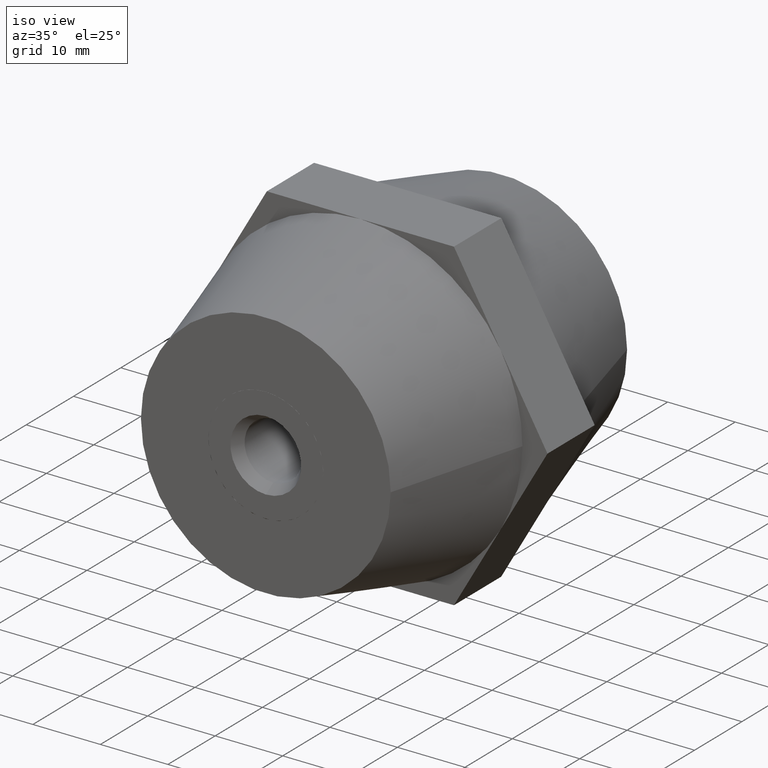
[diagram: clean part render]
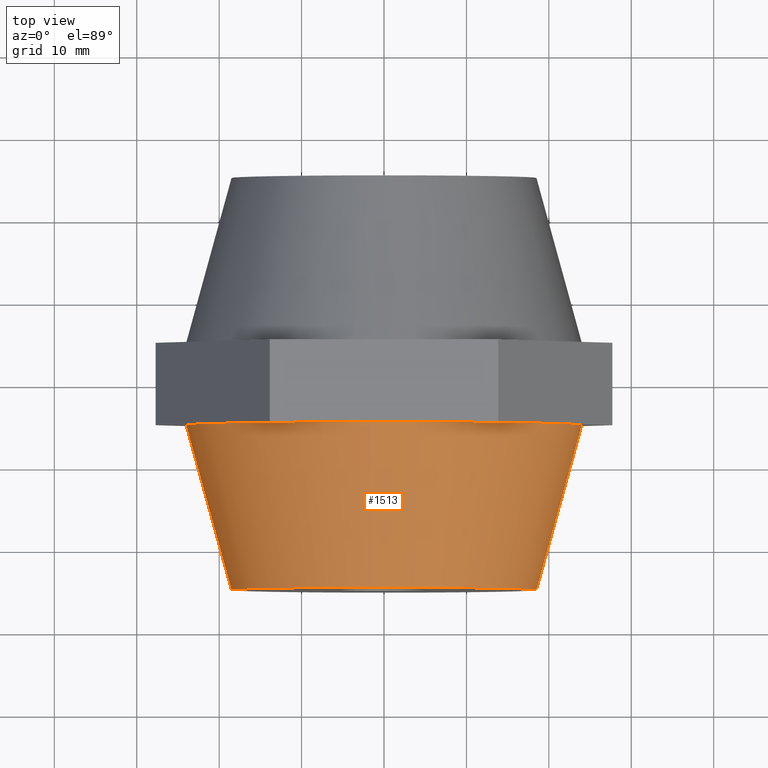
[diagram: tour spotlight — one face highlighted and labeled with its STEP entity id]
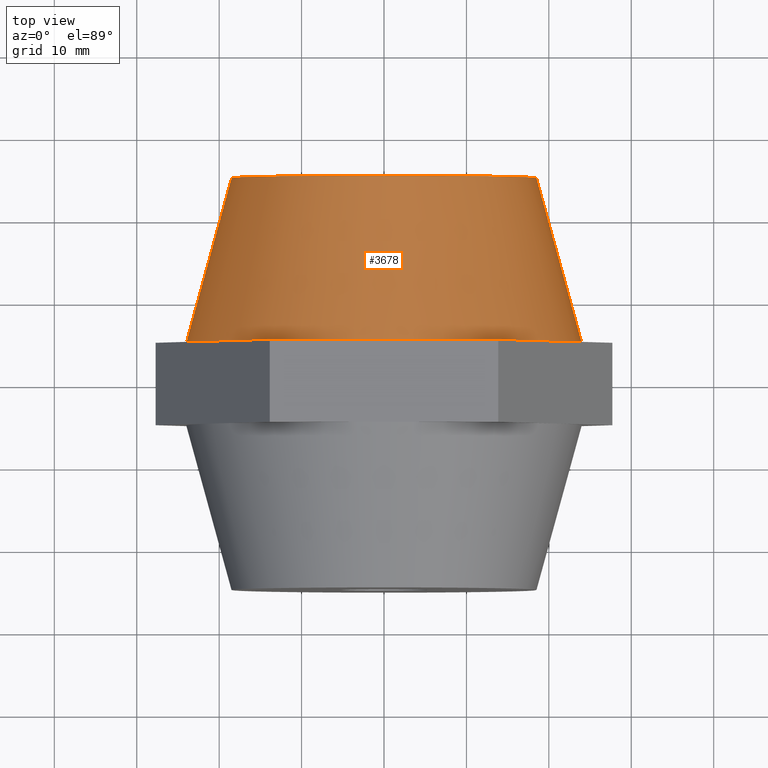
[diagram: tour spotlight — one face highlighted and labeled with its STEP entity id]
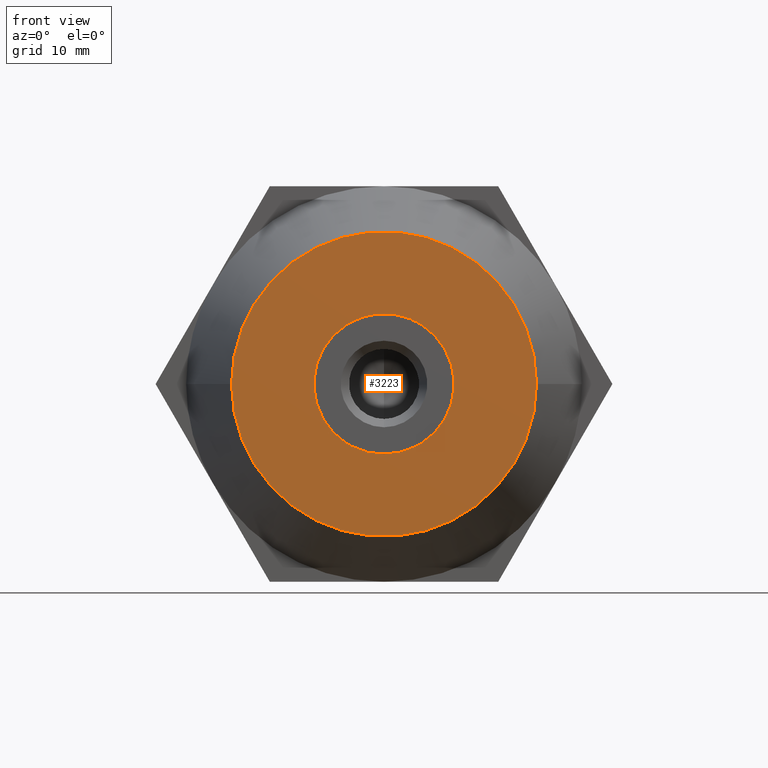
[diagram: tour spotlight — one face highlighted and labeled with its STEP entity id]
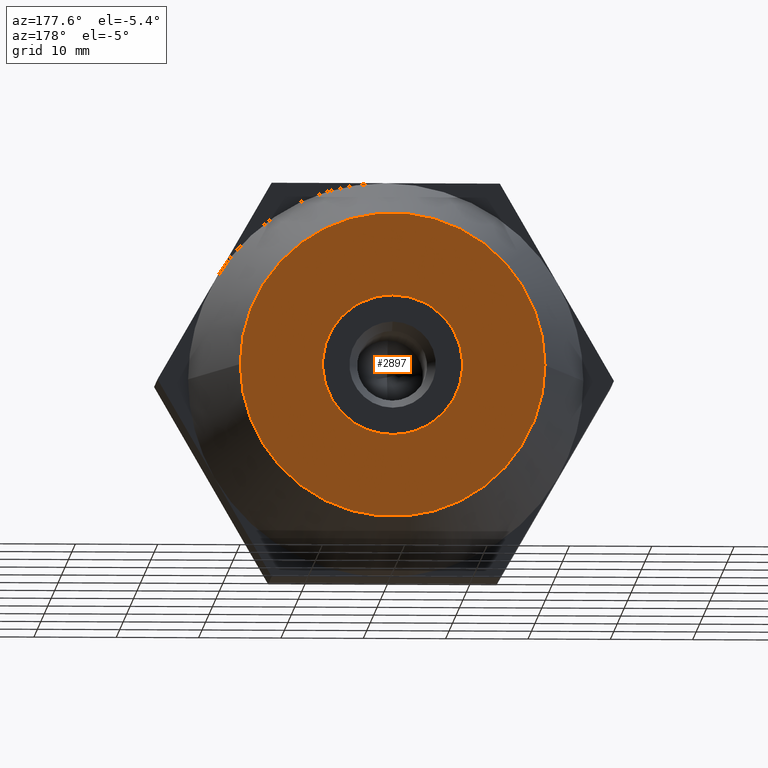
[diagram: tour spotlight — one face highlighted and labeled with its STEP entity id]
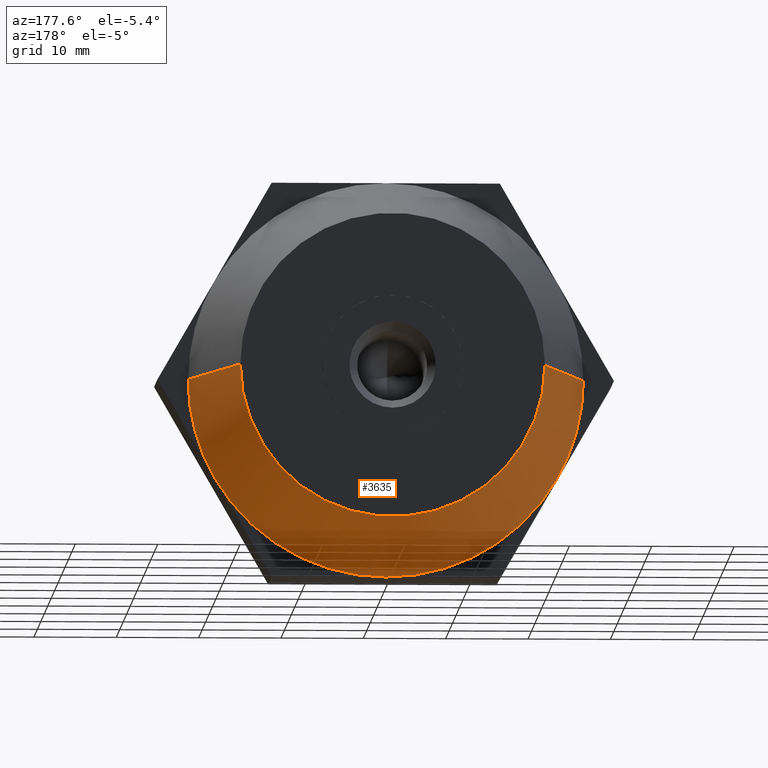
[diagram: tour spotlight — one face highlighted and labeled with its STEP entity id]
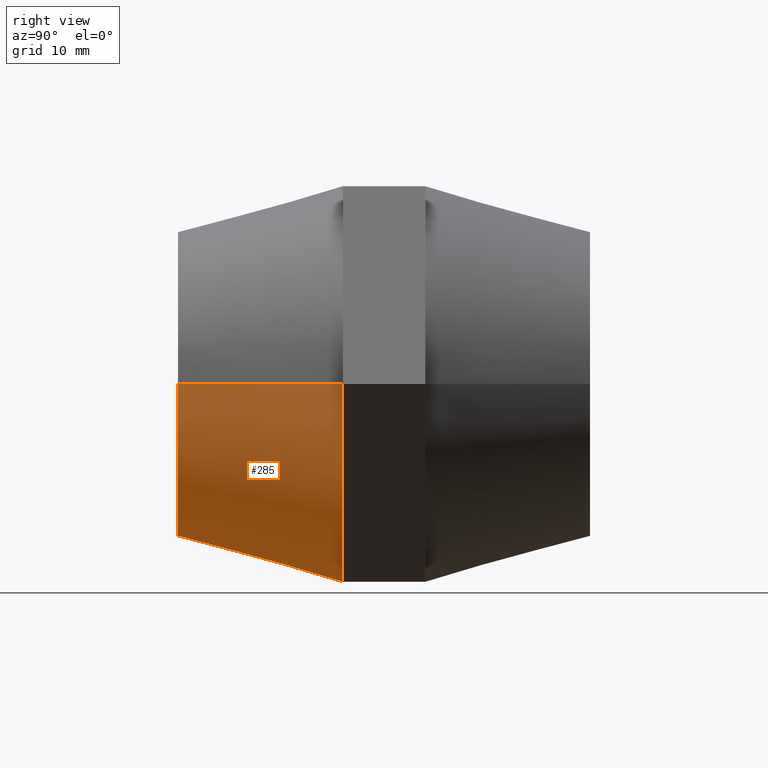
[diagram: tour spotlight — one face highlighted and labeled with its STEP entity id]
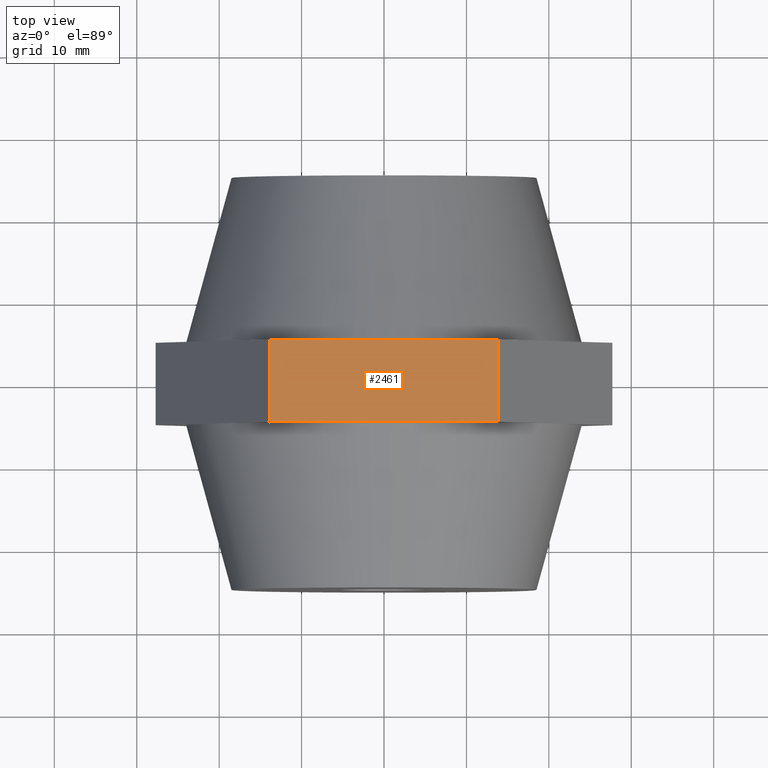
[diagram: tour spotlight — one face highlighted and labeled with its STEP entity id]
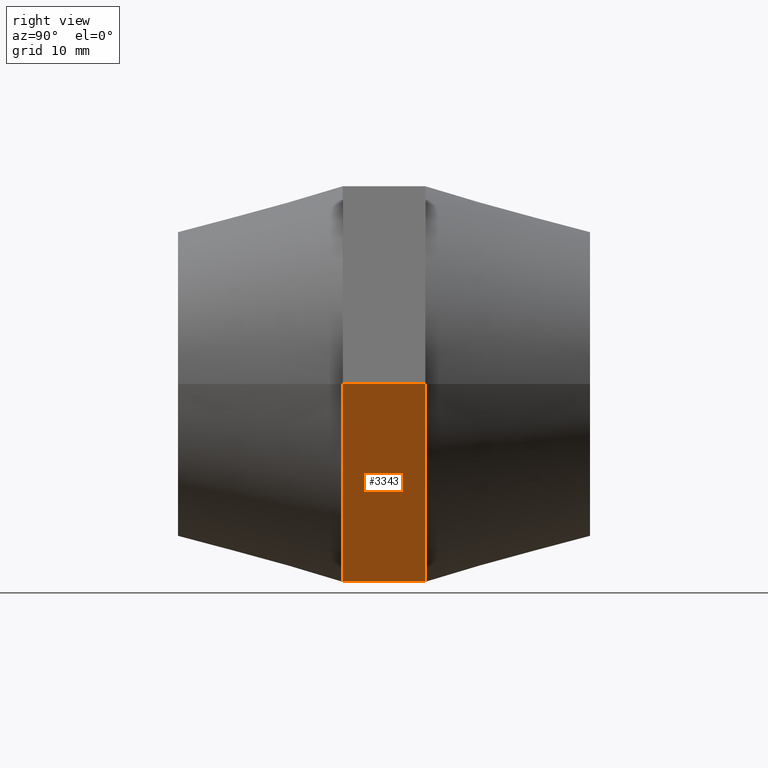
[diagram: tour spotlight — one face highlighted and labeled with its STEP entity id]
A machine part: a face-by-face anatomy tour. The part has 162 B-rep faces; the first image is the clean iso view, then the 8 largest visible faces are spotlighted one at a time (largest first), each with its STEP entity span.

Face 1 — top view, entity #1513. In plain terms, the highlighted conical surface has half-angle 15.376 deg.
Definition (entity closure, byte-faithful):
#19 = CARTESIAN_POINT ( 'NONE',  ( -23.99999999999999300, -4.999999999999997300, 0.0000000000000000000 ) ) ;
#30 = DIRECTION ( 'NONE',  ( 0.0000000000000000000, 0.0000000000000000000, 1.000000000000000000 ) ) ;
#42 = VECTOR ( 'NONE', #254, 1000.000000000000100 ) ;
#254 = DIRECTION ( 'NONE',  ( 0.2651564830210431700, 0.9642053928037901400, 3.247230382048897900E-017 ) ) ;
#325 = DIRECTION ( 'NONE',  ( -0.2651564830210429400, 0.9642053928037901400, 0.0000000000000000000 ) ) ;
#342 = CARTESIAN_POINT ( 'NONE',  ( 7.959741419701128200E-015, -5.000000000000000000, 6.060474499082429800E-016 ) ) ;
#354 = VERTEX_POINT ( 'NONE', #2178 ) ;
#404 = AXIS2_PLACEMENT_3D ( 'NONE', #3945, #1182, #2087 ) ;
#414 = ORIENTED_EDGE ( 'NONE', *, *, #529, .F. ) ;
#484 = CARTESIAN_POINT ( 'NONE',  ( 6.123233995736759800E-015, -25.00000000000000000, 0.0000000000000000000 ) ) ;
#529 = EDGE_CURVE ( 'NONE', #1502, #1735, #3660, .T. ) ;
#557 = EDGE_CURVE ( 'NONE', #354, #2193, #1492, .T. ) ;
#559 = CARTESIAN_POINT ( 'NONE',  ( 20.78460969082655300, -5.000000000000000000, 12.00000000000000000 ) ) ;
#750 = DIRECTION ( 'NONE',  ( 0.0000000000000000000, 0.0000000000000000000, 1.000000000000000000 ) ) ;
#909 = VERTEX_POINT ( 'NONE', #3963 ) ;
#1017 = CIRCLE ( 'NONE', #1802, 24.00000000000000000 ) ;
#1041 = ORIENTED_EDGE ( 'NONE', *, *, #1568, .F. ) ;
#1042 = VERTEX_POINT ( 'NONE', #1553 ) ;
#1085 = CARTESIAN_POINT ( 'NONE',  ( 7.959741419701128200E-015, -5.000000000000000000, 6.060474499082429800E-016 ) ) ;
#1099 = DIRECTION ( 'NONE',  ( 0.0000000000000000000, 0.0000000000000000000, 1.000000000000000000 ) ) ;
#1182 = DIRECTION ( 'NONE',  ( 9.182537119821829500E-017, 1.000000000000000000, 0.0000000000000000000 ) ) ;
#1241 = AXIS2_PLACEMENT_3D ( 'NONE', #484, #3868, #2012 ) ;
#1384 = LINE ( 'NONE', #19, #3553 ) ;
#1445 = DIRECTION ( 'NONE',  ( 9.182537119821829500E-017, 1.000000000000000000, 0.0000000000000000000 ) ) ;
#1481 = EDGE_LOOP ( 'NONE', ( #1824, #2584, #414, #2968, #2313, #1673, #1041 ) ) ;
#1484 = DIRECTION ( 'NONE',  ( -1.000000000000000000, 1.084202172485504400E-016, 0.0000000000000000000 ) ) ;
#1492 = CIRCLE ( 'NONE', #1241, 18.50000000000000000 ) ;
#1502 = VERTEX_POINT ( 'NONE', #559 ) ;
#1513 = ADVANCED_FACE ( 'NONE', ( #2104 ), #2435, .T. ) ;
#1553 = CARTESIAN_POINT ( 'NONE',  ( -23.99999999999999300, -5.000000000000000000, 0.0000000000000000000 ) ) ;
#1568 = EDGE_CURVE ( 'NONE', #354, #1042, #1384, .T. ) ;
#1638 = CIRCLE ( 'NONE', #2372, 24.00000000000000000 ) ;
#1673 = ORIENTED_EDGE ( 'NONE', *, *, #3606, .F. ) ;
#1690 = DIRECTION ( 'NONE',  ( 0.0000000000000000000, 1.000000000000000000, 0.0000000000000000000 ) ) ;
#1722 = CARTESIAN_POINT ( 'NONE',  ( 18.50000000000000700, -25.00000000000000000, 2.602374448188125400E-015 ) ) ;
#1735 = VERTEX_POINT ( 'NONE', #3734 ) ;
#1748 = CARTESIAN_POINT ( 'NONE',  ( 24.00000000000000700, -5.000000000000002700, 2.939152317953647900E-015 ) ) ;
#1802 = AXIS2_PLACEMENT_3D ( 'NONE', #3594, #1445, #1484 ) ;
#1824 = ORIENTED_EDGE ( 'NONE', *, *, #557, .T. ) ;
#1878 = EDGE_CURVE ( 'NONE', #2828, #1502, #2073, .T. ) ;
#1951 = CARTESIAN_POINT ( 'NONE',  ( 7.959741419701128200E-015, -5.000000000000000000, 6.060474499082429800E-016 ) ) ;
#2004 = DIRECTION ( 'NONE',  ( 0.0000000000000000000, 1.000000000000000000, 0.0000000000000000000 ) ) ;
#2012 = DIRECTION ( 'NONE',  ( -1.000000000000000000, 0.0000000000000000000, 0.0000000000000000000 ) ) ;
#2073 = CIRCLE ( 'NONE', #3472, 24.00000000000000000 ) ;
#2087 = DIRECTION ( 'NONE',  ( -1.000000000000000000, 1.084202172485504400E-016, 0.0000000000000000000 ) ) ;
#2104 = FACE_OUTER_BOUND ( 'NONE', #1481, .T. ) ;
#2174 = LINE ( 'NONE', #1748, #42 ) ;
#2178 = CARTESIAN_POINT ( 'NONE',  ( -18.49999999999999300, -25.00000000000000000, 0.0000000000000000000 ) ) ;
#2193 = VERTEX_POINT ( 'NONE', #1722 ) ;
#2313 = ORIENTED_EDGE ( 'NONE', *, *, #2614, .F. ) ;
#2372 = AXIS2_PLACEMENT_3D ( 'NONE', #342, #2471, #30 ) ;
#2435 = CONICAL_SURFACE ( 'NONE', #404, 24.00000000000000000, 0.2683662109059075700 ) ;
#2471 = DIRECTION ( 'NONE',  ( 0.0000000000000000000, 1.000000000000000000, 0.0000000000000000000 ) ) ;
#2475 = AXIS2_PLACEMENT_3D ( 'NONE', #1951, #1690, #750 ) ;
#2584 = ORIENTED_EDGE ( 'NONE', *, *, #3398, .T. ) ;
#2614 = EDGE_CURVE ( 'NONE', #909, #2828, #1017, .T. ) ;
#2828 = VERTEX_POINT ( 'NONE', #3567 ) ;
#2968 = ORIENTED_EDGE ( 'NONE', *, *, #1878, .F. ) ;
#3398 = EDGE_CURVE ( 'NONE', #2193, #1735, #2174, .T. ) ;
#3472 = AXIS2_PLACEMENT_3D ( 'NONE', #1085, #2004, #1099 ) ;
#3553 = VECTOR ( 'NONE', #325, 1000.000000000000100 ) ;
#3567 = CARTESIAN_POINT ( 'NONE',  ( 7.959741419701128200E-015, -5.000000000000000000, 24.00000000000000000 ) ) ;
#3594 = CARTESIAN_POINT ( 'NONE',  ( 7.959741419701128200E-015, -5.000000000000000000, 0.0000000000000000000 ) ) ;
#3606 = EDGE_CURVE ( 'NONE', #1042, #909, #1638, .T. ) ;
#3660 = CIRCLE ( 'NONE', #2475, 24.00000000000000000 ) ;
#3734 = CARTESIAN_POINT ( 'NONE',  ( 24.00000000000000700, -5.000000000000000000, 2.939152317953647900E-015 ) ) ;
#3868 = DIRECTION ( 'NONE',  ( 9.182537119821829500E-017, 1.000000000000000000, 0.0000000000000000000 ) ) ;
#3945 = CARTESIAN_POINT ( 'NONE',  ( 7.959741419701128200E-015, -5.000000000000000000, 0.0000000000000000000 ) ) ;
#3963 = CARTESIAN_POINT ( 'NONE',  ( -20.78460969082655300, -5.000000000000000000, 12.00000000000000000 ) ) ;

Face 2 — top view, entity #3678. In plain terms, the highlighted conical surface has half-angle 15.376 deg.
Definition (entity closure, byte-faithful):
#124 = CIRCLE ( 'NONE', #204, 18.50000000000000000 ) ;
#204 = AXIS2_PLACEMENT_3D ( 'NONE', #2307, #806, #2951 ) ;
#209 = VERTEX_POINT ( 'NONE', #3337 ) ;
#417 = CONICAL_SURFACE ( 'NONE', #1790, 18.50000000000000000, 0.2683662109059070700 ) ;
#433 = EDGE_LOOP ( 'NONE', ( #952, #2436, #2539, #3303, #1342, #2309, #524 ) ) ;
#439 = VERTEX_POINT ( 'NONE', #3419 ) ;
#443 = EDGE_CURVE ( 'NONE', #439, #2823, #1965, .T. ) ;
#524 = ORIENTED_EDGE ( 'NONE', *, *, #443, .F. ) ;
#636 = VERTEX_POINT ( 'NONE', #2017 ) ;
#683 = VECTOR ( 'NONE', #3439, 1000.000000000000000 ) ;
#703 = DIRECTION ( 'NONE',  ( -1.000000000000000000, 1.084202172485504400E-016, 0.0000000000000000000 ) ) ;
#717 = CARTESIAN_POINT ( 'NONE',  ( 8.877995131683309600E-015, 5.000000000000000000, 0.0000000000000000000 ) ) ;
#806 = DIRECTION ( 'NONE',  ( 9.182537119821829500E-017, 1.000000000000000000, 0.0000000000000000000 ) ) ;
#811 = CARTESIAN_POINT ( 'NONE',  ( -23.99999999999999600, 5.000000000000000000, 2.939152317953648300E-015 ) ) ;
#952 = ORIENTED_EDGE ( 'NONE', *, *, #1359, .F. ) ;
#1059 = CIRCLE ( 'NONE', #2182, 24.00000000000000000 ) ;
#1307 = DIRECTION ( 'NONE',  ( 1.000000000000000000, 0.0000000000000000000, 0.0000000000000000000 ) ) ;
#1342 = ORIENTED_EDGE ( 'NONE', *, *, #1869, .T. ) ;
#1359 = EDGE_CURVE ( 'NONE', #3127, #439, #124, .T. ) ;
#1366 = CARTESIAN_POINT ( 'NONE',  ( 8.877995131683309600E-015, 5.000000000000000000, 0.0000000000000000000 ) ) ;
#1408 = DIRECTION ( 'NONE',  ( 9.182537119821829500E-017, 1.000000000000000000, 0.0000000000000000000 ) ) ;
#1422 = CARTESIAN_POINT ( 'NONE',  ( 8.877995131683309600E-015, 5.000000000000000000, 0.0000000000000000000 ) ) ;
#1569 = CARTESIAN_POINT ( 'NONE',  ( 1.071450255564768000E-014, 25.00000000000000000, 0.0000000000000000000 ) ) ;
#1784 = VERTEX_POINT ( 'NONE', #2230 ) ;
#1790 = AXIS2_PLACEMENT_3D ( 'NONE', #1569, #2197, #1307 ) ;
#1842 = EDGE_CURVE ( 'NONE', #209, #2823, #3214, .T. ) ;
#1869 = EDGE_CURVE ( 'NONE', #636, #209, #1059, .T. ) ;
#1941 = DIRECTION ( 'NONE',  ( 9.182537119821829500E-017, 1.000000000000000000, 0.0000000000000000000 ) ) ;
#1965 = LINE ( 'NONE', #3097, #2786 ) ;
#2017 = CARTESIAN_POINT ( 'NONE',  ( 1.071450255564768000E-014, 5.000000000000000000, 24.00000000000000000 ) ) ;
#2042 = AXIS2_PLACEMENT_3D ( 'NONE', #717, #1941, #703 ) ;
#2182 = AXIS2_PLACEMENT_3D ( 'NONE', #1366, #3529, #2611 ) ;
#2197 = DIRECTION ( 'NONE',  ( -9.182537119821829500E-017, -1.000000000000000000, 0.0000000000000000000 ) ) ;
#2230 = CARTESIAN_POINT ( 'NONE',  ( -20.78460969082650000, 5.000000000000000000, 12.00000000000000000 ) ) ;
#2307 = CARTESIAN_POINT ( 'NONE',  ( 1.071450255564768000E-014, 25.00000000000000000, 0.0000000000000000000 ) ) ;
#2309 = ORIENTED_EDGE ( 'NONE', *, *, #1842, .T. ) ;
#2310 = LINE ( 'NONE', #2815, #683 ) ;
#2417 = EDGE_CURVE ( 'NONE', #3127, #3842, #2310, .T. ) ;
#2434 = AXIS2_PLACEMENT_3D ( 'NONE', #2624, #3839, #2600 ) ;
#2436 = ORIENTED_EDGE ( 'NONE', *, *, #2417, .T. ) ;
#2539 = ORIENTED_EDGE ( 'NONE', *, *, #3189, .T. ) ;
#2600 = DIRECTION ( 'NONE',  ( -1.000000000000000000, 1.084202172485504400E-016, 0.0000000000000000000 ) ) ;
#2611 = DIRECTION ( 'NONE',  ( -1.000000000000000000, 1.084202172485504400E-016, 0.0000000000000000000 ) ) ;
#2624 = CARTESIAN_POINT ( 'NONE',  ( 8.877995131683309600E-015, 5.000000000000000000, 0.0000000000000000000 ) ) ;
#2637 = AXIS2_PLACEMENT_3D ( 'NONE', #1422, #1408, #3291 ) ;
#2786 = VECTOR ( 'NONE', #2908, 1000.000000000000100 ) ;
#2815 = CARTESIAN_POINT ( 'NONE',  ( -18.49999999999998900, 25.00000000000000000, 2.265596578422603400E-015 ) ) ;
#2823 = VERTEX_POINT ( 'NONE', #2947 ) ;
#2908 = DIRECTION ( 'NONE',  ( 0.2651564830210425000, -0.9642053928037903600, 0.0000000000000000000 ) ) ;
#2947 = CARTESIAN_POINT ( 'NONE',  ( 24.00000000000001100, 5.000000000000000000, 0.0000000000000000000 ) ) ;
#2951 = DIRECTION ( 'NONE',  ( -1.000000000000000000, 0.0000000000000000000, 0.0000000000000000000 ) ) ;
#3095 = CARTESIAN_POINT ( 'NONE',  ( -18.49999999999998900, 25.00000000000000000, 2.602374448188125800E-015 ) ) ;
#3097 = CARTESIAN_POINT ( 'NONE',  ( 18.50000000000001100, 25.00000000000000000, 0.0000000000000000000 ) ) ;
#3127 = VERTEX_POINT ( 'NONE', #3095 ) ;
#3181 = CIRCLE ( 'NONE', #2042, 24.00000000000000000 ) ;
#3189 = EDGE_CURVE ( 'NONE', #3842, #1784, #3181, .T. ) ;
#3214 = CIRCLE ( 'NONE', #2434, 24.00000000000000000 ) ;
#3291 = DIRECTION ( 'NONE',  ( -1.000000000000000000, 1.084202172485504400E-016, 0.0000000000000000000 ) ) ;
#3303 = ORIENTED_EDGE ( 'NONE', *, *, #3810, .T. ) ;
#3337 = CARTESIAN_POINT ( 'NONE',  ( 20.78460969082650000, 5.000000000000000000, 12.00000000000000000 ) ) ;
#3381 = CIRCLE ( 'NONE', #2637, 24.00000000000000000 ) ;
#3419 = CARTESIAN_POINT ( 'NONE',  ( 18.50000000000001100, 25.00000000000000000, 0.0000000000000000000 ) ) ;
#3439 = DIRECTION ( 'NONE',  ( -0.2651564830210426700, -0.9642053928037902500, 3.247230382048892400E-017 ) ) ;
#3529 = DIRECTION ( 'NONE',  ( 9.182537119821829500E-017, 1.000000000000000000, 0.0000000000000000000 ) ) ;
#3628 = FACE_OUTER_BOUND ( 'NONE', #433, .T. ) ;
#3678 = ADVANCED_FACE ( 'NONE', ( #3628 ), #417, .T. ) ;
#3810 = EDGE_CURVE ( 'NONE', #1784, #636, #3381, .T. ) ;
#3839 = DIRECTION ( 'NONE',  ( 9.182537119821829500E-017, 1.000000000000000000, 0.0000000000000000000 ) ) ;
#3842 = VERTEX_POINT ( 'NONE', #811 ) ;

Face 3 — front view, entity #3223. In plain terms, the highlighted planar face has unit normal (-0, -1, 0).
Definition (entity closure, byte-faithful):
#20 = DIRECTION ( 'NONE',  ( -0.8660254037844387100, 7.952310416959298700E-017, 0.4999999999999998900 ) ) ;
#28 = DIRECTION ( 'NONE',  ( 1.000000000000000000, 0.0000000000000000000, -1.776356839400250500E-015 ) ) ;
#36 = ORIENTED_EDGE ( 'NONE', *, *, #557, .F. ) ;
#104 = EDGE_CURVE ( 'NONE', #976, #1535, #1880, .T. ) ;
#183 = DIRECTION ( 'NONE',  ( 9.182537119821829500E-017, 1.000000000000000000, 0.0000000000000000000 ) ) ;
#225 = LINE ( 'NONE', #3591, #2022 ) ;
#227 = VECTOR ( 'NONE', #1910, 1000.000000000000000 ) ;
#232 = EDGE_CURVE ( 'NONE', #1414, #1280, #225, .T. ) ;
#290 = AXIS2_PLACEMENT_3D ( 'NONE', #2327, #183, #2650 ) ;
#307 = CARTESIAN_POINT ( 'NONE',  ( -4.607176426993850000, -25.00000000000000000, 7.155000025894639600 ) ) ;
#318 = ORIENTED_EDGE ( 'NONE', *, *, #1335, .T. ) ;
#326 = CARTESIAN_POINT ( 'NONE',  ( -18.12500000000000000, -25.00000000000000000, 0.6495190528383230100 ) ) ;
#330 = DIRECTION ( 'NONE',  ( 1.000000000000000000, 0.0000000000000000000, 0.0000000000000000000 ) ) ;
#354 = VERTEX_POINT ( 'NONE', #2178 ) ;
#387 = ORIENTED_EDGE ( 'NONE', *, *, #2290, .T. ) ;
#484 = CARTESIAN_POINT ( 'NONE',  ( 6.123233995736759800E-015, -25.00000000000000000, 0.0000000000000000000 ) ) ;
#511 = CARTESIAN_POINT ( 'NONE',  ( 4.128506240030730200E-016, -25.00000000000000000, 0.0000000000000000000 ) ) ;
#539 = CIRCLE ( 'NONE', #3456, 8.509999999999999800 ) ;
#540 = ORIENTED_EDGE ( 'NONE', *, *, #2820, .T. ) ;
#557 = EDGE_CURVE ( 'NONE', #354, #2193, #1492, .T. ) ;
#590 = CARTESIAN_POINT ( 'NONE',  ( 4.128506240030730200E-016, -25.00000000000000000, 0.0000000000000000000 ) ) ;
#597 = CIRCLE ( 'NONE', #290, 18.50000000000000000 ) ;
#617 = VERTEX_POINT ( 'NONE', #1707 ) ;
#643 = CIRCLE ( 'NONE', #3886, 8.509999999999999800 ) ;
#697 = AXIS2_PLACEMENT_3D ( 'NONE', #1529, #3686, #330 ) ;
#734 = EDGE_CURVE ( 'NONE', #3306, #976, #539, .T. ) ;
#769 = DIRECTION ( 'NONE',  ( 9.182537119821829500E-017, 1.000000000000000000, -0.0000000000000000000 ) ) ;
#795 = CARTESIAN_POINT ( 'NONE',  ( -8.500000000000000000, -25.00000000000000000, 0.4124318125460260100 ) ) ;
#847 = DIRECTION ( 'NONE',  ( 1.000000000000000000, 0.0000000000000000000, 0.0000000000000000000 ) ) ;
#924 = LINE ( 'NONE', #1538, #2314 ) ;
#976 = VERTEX_POINT ( 'NONE', #1536 ) ;
#980 = CARTESIAN_POINT ( 'NONE',  ( 3.892823573006280100, -25.00000000000000000, -7.567431838440740000 ) ) ;
#1019 = DIRECTION ( 'NONE',  ( -9.182537119821829500E-017, -1.000000000000000000, 0.0000000000000000000 ) ) ;
#1028 = CARTESIAN_POINT ( 'NONE',  ( -18.12500000000000000, -25.00000000000000000, -0.6495190528383320000 ) ) ;
#1032 = PLANE ( 'NONE',  #3355 ) ;
#1037 = DIRECTION ( 'NONE',  ( 1.000000000000000000, 0.0000000000000000000, -1.776356839400250500E-015 ) ) ;
#1050 = VERTEX_POINT ( 'NONE', #1055 ) ;
#1055 = CARTESIAN_POINT ( 'NONE',  ( -1.925929944387235900E-031, -25.00000000000000000, 8.509999999999999800 ) ) ;
#1116 = ORIENTED_EDGE ( 'NONE', *, *, #2152, .T. ) ;
#1134 = DIRECTION ( 'NONE',  ( 9.182537119821829500E-017, 1.000000000000000000, -0.0000000000000000000 ) ) ;
#1160 = CARTESIAN_POINT ( 'NONE',  ( 8.500000000000000000, -25.00000000000000000, 9.544116274330180600E-015 ) ) ;
#1195 = ORIENTED_EDGE ( 'NONE', *, *, #734, .T. ) ;
#1232 = ORIENTED_EDGE ( 'NONE', *, *, #3745, .T. ) ;
#1241 = AXIS2_PLACEMENT_3D ( 'NONE', #484, #3868, #2012 ) ;
#1258 = CIRCLE ( 'NONE', #3178, 8.509999999999999800 ) ;
#1280 = VERTEX_POINT ( 'NONE', #795 ) ;
#1335 = EDGE_CURVE ( 'NONE', #3449, #3265, #3901, .T. ) ;
#1410 = DIRECTION ( 'NONE',  ( 1.000000000000000000, 0.0000000000000000000, 0.0000000000000000000 ) ) ;
#1414 = VERTEX_POINT ( 'NONE', #2008 ) ;
#1438 = VECTOR ( 'NONE', #2626, 1000.000000000000000 ) ;
#1492 = CIRCLE ( 'NONE', #1241, 18.50000000000000000 ) ;
#1515 = DIRECTION ( 'NONE',  ( 9.182537119821829500E-017, 1.000000000000000000, -0.0000000000000000000 ) ) ;
#1529 = CARTESIAN_POINT ( 'NONE',  ( 4.128506240030730200E-016, -25.00000000000000000, 0.0000000000000000000 ) ) ;
#1535 = VERTEX_POINT ( 'NONE', #2722 ) ;
#1536 = CARTESIAN_POINT ( 'NONE',  ( 8.500000000000000000, -25.00000000000000000, 0.4124318125460619800 ) ) ;
#1538 = CARTESIAN_POINT ( 'NONE',  ( -9.625000000000000000, -25.00000000000000000, 15.37195091717380000 ) ) ;
#1596 = EDGE_CURVE ( 'NONE', #1535, #3449, #2827, .T. ) ;
#1597 = FACE_OUTER_BOUND ( 'NONE', #1783, .T. ) ;
#1707 = CARTESIAN_POINT ( 'NONE',  ( -4.607176426993720300, -25.00000000000000000, -7.155000025894719500 ) ) ;
#1722 = CARTESIAN_POINT ( 'NONE',  ( 18.50000000000000700, -25.00000000000000000, 2.602374448188125400E-015 ) ) ;
#1744 = CARTESIAN_POINT ( 'NONE',  ( -9.625000000000000000, -25.00000000000000000, -15.37195091717380000 ) ) ;
#1783 = EDGE_LOOP ( 'NONE', ( #36, #3743 ) ) ;
#1822 = CARTESIAN_POINT ( 'NONE',  ( 4.128506240030730200E-016, -25.00000000000000000, 0.0000000000000000000 ) ) ;
#1880 = LINE ( 'NONE', #1160, #2835 ) ;
#1910 = DIRECTION ( 'NONE',  ( 0.8660254037844387100, -7.952310416959298700E-017, 0.4999999999999998900 ) ) ;
#1992 = EDGE_CURVE ( 'NONE', #3597, #3420, #3718, .T. ) ;
#2008 = CARTESIAN_POINT ( 'NONE',  ( -8.500000000000000000, -25.00000000000000000, -0.4124318125460260100 ) ) ;
#2012 = DIRECTION ( 'NONE',  ( -1.000000000000000000, 0.0000000000000000000, 0.0000000000000000000 ) ) ;
#2022 = VECTOR ( 'NONE', #3649, 1000.000000000000000 ) ;
#2049 = DIRECTION ( 'NONE',  ( 3.534857879381550100E-016, -3.245896369071579600E-032, -1.000000000000000000 ) ) ;
#2052 = ORIENTED_EDGE ( 'NONE', *, *, #104, .T. ) ;
#2055 = CARTESIAN_POINT ( 'NONE',  ( 4.128506240030730200E-016, -25.00000000000000000, 0.0000000000000000000 ) ) ;
#2069 = ORIENTED_EDGE ( 'NONE', *, *, #1992, .T. ) ;
#2083 = CARTESIAN_POINT ( 'NONE',  ( -3.892823573006150000, -25.00000000000000000, 7.567431838440809200 ) ) ;
#2115 = AXIS2_PLACEMENT_3D ( 'NONE', #2055, #1134, #1410 ) ;
#2152 = EDGE_CURVE ( 'NONE', #2977, #617, #3173, .T. ) ;
#2178 = CARTESIAN_POINT ( 'NONE',  ( -18.49999999999999300, -25.00000000000000000, 0.0000000000000000000 ) ) ;
#2193 = VERTEX_POINT ( 'NONE', #1722 ) ;
#2259 = CARTESIAN_POINT ( 'NONE',  ( -18.50000000000000000, -25.00000000000000000, 0.0000000000000000000 ) ) ;
#2290 = EDGE_CURVE ( 'NONE', #3202, #3306, #924, .T. ) ;
#2302 = ORIENTED_EDGE ( 'NONE', *, *, #1596, .T. ) ;
#2314 = VECTOR ( 'NONE', #3727, 1000.000000000000000 ) ;
#2327 = CARTESIAN_POINT ( 'NONE',  ( 6.123233995736759800E-015, -25.00000000000000000, 0.0000000000000000000 ) ) ;
#2365 = DIRECTION ( 'NONE',  ( 9.182537119821829500E-017, 1.000000000000000000, -0.0000000000000000000 ) ) ;
#2389 = EDGE_CURVE ( 'NONE', #3420, #1050, #2838, .T. ) ;
#2402 = DIRECTION ( 'NONE',  ( 9.182537119821829500E-017, 1.000000000000000000, -0.0000000000000000000 ) ) ;
#2429 = EDGE_LOOP ( 'NONE', ( #387, #1195, #2052, #2302, #318, #2872, #1116, #540, #3277, #3742, #2069, #3939, #1232 ) ) ;
#2626 = DIRECTION ( 'NONE',  ( -0.8660254037844387100, 7.952310416959298700E-017, -0.4999999999999998900 ) ) ;
#2650 = DIRECTION ( 'NONE',  ( -1.000000000000000000, 0.0000000000000000000, 0.0000000000000000000 ) ) ;
#2722 = CARTESIAN_POINT ( 'NONE',  ( 8.500000000000000000, -25.00000000000000000, -0.4124318125460800200 ) ) ;
#2751 = DIRECTION ( 'NONE',  ( 1.000000000000000000, 0.0000000000000000000, 0.0000000000000000000 ) ) ;
#2820 = EDGE_CURVE ( 'NONE', #617, #1414, #3369, .T. ) ;
#2827 = CIRCLE ( 'NONE', #2933, 8.509999999999999800 ) ;
#2835 = VECTOR ( 'NONE', #2049, 1000.000000000000000 ) ;
#2836 = CARTESIAN_POINT ( 'NONE',  ( 3.892823573006245000, -25.00000000000000000, 7.567431838440759500 ) ) ;
#2838 = CIRCLE ( 'NONE', #697, 8.509999999999999800 ) ;
#2872 = ORIENTED_EDGE ( 'NONE', *, *, #3820, .T. ) ;
#2880 = CIRCLE ( 'NONE', #3642, 8.509999999999999800 ) ;
#2885 = VECTOR ( 'NONE', #20, 1000.000000000000000 ) ;
#2933 = AXIS2_PLACEMENT_3D ( 'NONE', #1822, #1515, #2751 ) ;
#2959 = DIRECTION ( 'NONE',  ( 1.000000000000000000, 0.0000000000000000000, 0.0000000000000000000 ) ) ;
#2977 = VERTEX_POINT ( 'NONE', #3336 ) ;
#2978 = EDGE_CURVE ( 'NONE', #1280, #3597, #2880, .T. ) ;
#3135 = DIRECTION ( 'NONE',  ( 1.000000000000000000, -9.182537119821829500E-017, 0.0000000000000000000 ) ) ;
#3173 = LINE ( 'NONE', #326, #2885 ) ;
#3178 = AXIS2_PLACEMENT_3D ( 'NONE', #3475, #769, #1037 ) ;
#3202 = VERTEX_POINT ( 'NONE', #2836 ) ;
#3223 = ADVANCED_FACE ( 'NONE', ( #1597, #3521 ), #1032, .T. ) ;
#3265 = VERTEX_POINT ( 'NONE', #980 ) ;
#3277 = ORIENTED_EDGE ( 'NONE', *, *, #232, .T. ) ;
#3306 = VERTEX_POINT ( 'NONE', #3894 ) ;
#3312 = EDGE_CURVE ( 'NONE', #2193, #354, #597, .T. ) ;
#3336 = CARTESIAN_POINT ( 'NONE',  ( -3.892823573006280100, -25.00000000000000000, -7.567431838440740000 ) ) ;
#3355 = AXIS2_PLACEMENT_3D ( 'NONE', #2259, #1019, #3135 ) ;
#3369 = CIRCLE ( 'NONE', #2115, 8.509999999999999800 ) ;
#3420 = VERTEX_POINT ( 'NONE', #2083 ) ;
#3449 = VERTEX_POINT ( 'NONE', #3639 ) ;
#3456 = AXIS2_PLACEMENT_3D ( 'NONE', #3887, #2365, #2959 ) ;
#3475 = CARTESIAN_POINT ( 'NONE',  ( 4.128506240030730200E-016, -25.00000000000000000, 0.0000000000000000000 ) ) ;
#3521 = FACE_BOUND ( 'NONE', #2429, .T. ) ;
#3576 = DIRECTION ( 'NONE',  ( 9.182537119821829500E-017, 1.000000000000000000, -0.0000000000000000000 ) ) ;
#3591 = CARTESIAN_POINT ( 'NONE',  ( -8.500000000000000000, -25.00000000000000000, 0.0000000000000000000 ) ) ;
#3597 = VERTEX_POINT ( 'NONE', #307 ) ;
#3639 = CARTESIAN_POINT ( 'NONE',  ( 4.607176426993720300, -25.00000000000000000, -7.155000025894719500 ) ) ;
#3642 = AXIS2_PLACEMENT_3D ( 'NONE', #590, #2402, #28 ) ;
#3649 = DIRECTION ( 'NONE',  ( 0.0000000000000000000, 0.0000000000000000000, 1.000000000000000000 ) ) ;
#3686 = DIRECTION ( 'NONE',  ( 9.182537119821829500E-017, 1.000000000000000000, -0.0000000000000000000 ) ) ;
#3718 = LINE ( 'NONE', #1028, #227 ) ;
#3727 = DIRECTION ( 'NONE',  ( 0.8660254037844387100, -7.952310416959298700E-017, -0.4999999999999998900 ) ) ;
#3742 = ORIENTED_EDGE ( 'NONE', *, *, #2978, .T. ) ;
#3743 = ORIENTED_EDGE ( 'NONE', *, *, #3312, .F. ) ;
#3745 = EDGE_CURVE ( 'NONE', #1050, #3202, #1258, .T. ) ;
#3820 = EDGE_CURVE ( 'NONE', #3265, #2977, #643, .T. ) ;
#3868 = DIRECTION ( 'NONE',  ( 9.182537119821829500E-017, 1.000000000000000000, 0.0000000000000000000 ) ) ;
#3886 = AXIS2_PLACEMENT_3D ( 'NONE', #511, #3576, #847 ) ;
#3887 = CARTESIAN_POINT ( 'NONE',  ( 4.128506240030730200E-016, -25.00000000000000000, 0.0000000000000000000 ) ) ;
#3894 = CARTESIAN_POINT ( 'NONE',  ( 4.607176426993739900, -25.00000000000000000, 7.155000025894699100 ) ) ;
#3901 = LINE ( 'NONE', #1744, #1438 ) ;
#3939 = ORIENTED_EDGE ( 'NONE', *, *, #2389, .T. ) ;

Face 4 — auxiliary view, entity #2897. In plain terms, the highlighted planar face has unit normal (0, 1, 0).
Definition (entity closure, byte-faithful):
#5 = EDGE_CURVE ( 'NONE', #439, #3127, #3860, .T. ) ;
#48 = DIRECTION ( 'NONE',  ( -0.8660254037844387100, 7.952310416959298700E-017, -0.4999999999999998900 ) ) ;
#124 = CIRCLE ( 'NONE', #204, 18.50000000000000000 ) ;
#132 = VERTEX_POINT ( 'NONE', #1407 ) ;
#143 = DIRECTION ( 'NONE',  ( -1.000000000000000000, 0.0000000000000000000, 1.776356839400250500E-015 ) ) ;
#157 = CARTESIAN_POINT ( 'NONE',  ( -3.892823573006349800, 25.00000000000000000, 7.567431838440700000 ) ) ;
#204 = AXIS2_PLACEMENT_3D ( 'NONE', #2307, #806, #2951 ) ;
#215 = VERTEX_POINT ( 'NONE', #1500 ) ;
#273 = CARTESIAN_POINT ( 'NONE',  ( -18.50000000000000000, 25.00000000000000000, 0.0000000000000000000 ) ) ;
#296 = ORIENTED_EDGE ( 'NONE', *, *, #1621, .T. ) ;
#306 = ORIENTED_EDGE ( 'NONE', *, *, #5, .T. ) ;
#314 = CARTESIAN_POINT ( 'NONE',  ( -9.625000000000000000, 25.00000000000000000, 15.37195091717380000 ) ) ;
#335 = EDGE_CURVE ( 'NONE', #132, #3890, #1592, .T. ) ;
#407 = ORIENTED_EDGE ( 'NONE', *, *, #335, .T. ) ;
#424 = ORIENTED_EDGE ( 'NONE', *, *, #1016, .T. ) ;
#439 = VERTEX_POINT ( 'NONE', #3419 ) ;
#452 = LINE ( 'NONE', #3372, #638 ) ;
#464 = CARTESIAN_POINT ( 'NONE',  ( -4.128506240030719800E-016, 25.00000000000000000, 0.0000000000000000000 ) ) ;
#492 = DIRECTION ( 'NONE',  ( 0.8660254037844387100, -7.952310416959298700E-017, 0.4999999999999998900 ) ) ;
#563 = AXIS2_PLACEMENT_3D ( 'NONE', #613, #1231, #3391 ) ;
#569 = VERTEX_POINT ( 'NONE', #157 ) ;
#613 = CARTESIAN_POINT ( 'NONE',  ( -4.128506240030719800E-016, 25.00000000000000000, 0.0000000000000000000 ) ) ;
#622 = CARTESIAN_POINT ( 'NONE',  ( -4.128506240030719800E-016, 25.00000000000000000, 0.0000000000000000000 ) ) ;
#638 = VECTOR ( 'NONE', #2124, 1000.000000000000000 ) ;
#639 = ORIENTED_EDGE ( 'NONE', *, *, #3367, .T. ) ;
#648 = DIRECTION ( 'NONE',  ( 0.8660254037844387100, -7.952310416959298700E-017, -0.4999999999999998900 ) ) ;
#729 = EDGE_CURVE ( 'NONE', #215, #2961, #3505, .T. ) ;
#737 = CARTESIAN_POINT ( 'NONE',  ( 8.500000000000000000, 25.00000000000000000, -0.4124318125459794900 ) ) ;
#756 = EDGE_LOOP ( 'NONE', ( #306, #2686 ) ) ;
#793 = AXIS2_PLACEMENT_3D ( 'NONE', #2938, #2656, #843 ) ;
#806 = DIRECTION ( 'NONE',  ( 9.182537119821829500E-017, 1.000000000000000000, 0.0000000000000000000 ) ) ;
#814 = AXIS2_PLACEMENT_3D ( 'NONE', #622, #1263, #2499 ) ;
#843 = DIRECTION ( 'NONE',  ( -1.000000000000000000, 0.0000000000000000000, 8.881784197001252300E-016 ) ) ;
#874 = DIRECTION ( 'NONE',  ( -1.000000000000000000, 0.0000000000000000000, -8.881784197001252300E-016 ) ) ;
#898 = CARTESIAN_POINT ( 'NONE',  ( -3.892823573006294800, 25.00000000000000000, -7.567431838440729300 ) ) ;
#913 = CARTESIAN_POINT ( 'NONE',  ( -18.12500000000000000, 25.00000000000000000, 0.6495190528383320000 ) ) ;
#926 = DIRECTION ( 'NONE',  ( -9.182537119821829500E-017, -1.000000000000000000, -0.0000000000000000000 ) ) ;
#949 = AXIS2_PLACEMENT_3D ( 'NONE', #2560, #926, #143 ) ;
#953 = VERTEX_POINT ( 'NONE', #1236 ) ;
#960 = CIRCLE ( 'NONE', #3345, 8.509999999999999800 ) ;
#962 = CIRCLE ( 'NONE', #2325, 8.509999999999999800 ) ;
#1016 = EDGE_CURVE ( 'NONE', #2300, #1860, #2642, .T. ) ;
#1074 = DIRECTION ( 'NONE',  ( -1.000000000000000000, 0.0000000000000000000, 0.0000000000000000000 ) ) ;
#1081 = VERTEX_POINT ( 'NONE', #737 ) ;
#1115 = CARTESIAN_POINT ( 'NONE',  ( 1.071450255564768000E-014, 25.00000000000000000, 0.0000000000000000000 ) ) ;
#1118 = CARTESIAN_POINT ( 'NONE',  ( 4.607176426993670600, 25.00000000000000000, -7.155000025894739900 ) ) ;
#1138 = EDGE_CURVE ( 'NONE', #3485, #215, #960, .T. ) ;
#1169 = LINE ( 'NONE', #2320, #3814 ) ;
#1231 = DIRECTION ( 'NONE',  ( -9.182537119821829500E-017, -1.000000000000000000, -0.0000000000000000000 ) ) ;
#1236 = CARTESIAN_POINT ( 'NONE',  ( -4.607176426993650200, 25.00000000000000000, 7.155000025894760400 ) ) ;
#1247 = DIRECTION ( 'NONE',  ( -1.000000000000000000, 0.0000000000000000000, 0.0000000000000000000 ) ) ;
#1263 = DIRECTION ( 'NONE',  ( -9.182537119821829500E-017, -1.000000000000000000, -0.0000000000000000000 ) ) ;
#1273 = DIRECTION ( 'NONE',  ( -9.182537119821829500E-017, -1.000000000000000000, -0.0000000000000000000 ) ) ;
#1339 = FACE_OUTER_BOUND ( 'NONE', #756, .T. ) ;
#1359 = EDGE_CURVE ( 'NONE', #3127, #439, #124, .T. ) ;
#1407 = CARTESIAN_POINT ( 'NONE',  ( -8.500000000000000000, 25.00000000000000000, -0.4124318125459439700 ) ) ;
#1436 = ORIENTED_EDGE ( 'NONE', *, *, #729, .T. ) ;
#1488 = VERTEX_POINT ( 'NONE', #3656 ) ;
#1500 = CARTESIAN_POINT ( 'NONE',  ( 1.925929944387235900E-031, 25.00000000000000000, -8.509999999999999800 ) ) ;
#1521 = DIRECTION ( 'NONE',  ( -0.8660254037844387100, 7.952310416959298700E-017, 0.4999999999999998900 ) ) ;
#1558 = AXIS2_PLACEMENT_3D ( 'NONE', #273, #1747, #2347 ) ;
#1592 = CIRCLE ( 'NONE', #563, 8.509999999999999800 ) ;
#1621 = EDGE_CURVE ( 'NONE', #3890, #3485, #2166, .T. ) ;
#1653 = EDGE_CURVE ( 'NONE', #1860, #1488, #2304, .T. ) ;
#1678 = DIRECTION ( 'NONE',  ( 0.0000000000000000000, 0.0000000000000000000, -1.000000000000000000 ) ) ;
#1747 = DIRECTION ( 'NONE',  ( 9.182537119821829500E-017, 1.000000000000000000, 0.0000000000000000000 ) ) ;
#1758 = AXIS2_PLACEMENT_3D ( 'NONE', #3855, #1997, #874 ) ;
#1762 = EDGE_LOOP ( 'NONE', ( #3856, #2292, #3378, #424, #3029, #1857, #3204, #1793, #639, #407, #296, #2541, #1436 ) ) ;
#1793 = ORIENTED_EDGE ( 'NONE', *, *, #3103, .T. ) ;
#1836 = EDGE_CURVE ( 'NONE', #2961, #2679, #1169, .T. ) ;
#1857 = ORIENTED_EDGE ( 'NONE', *, *, #3137, .T. ) ;
#1860 = VERTEX_POINT ( 'NONE', #3826 ) ;
#1976 = CIRCLE ( 'NONE', #814, 8.509999999999999800 ) ;
#1997 = DIRECTION ( 'NONE',  ( -9.182537119821829500E-017, -1.000000000000000000, -0.0000000000000000000 ) ) ;
#2124 = DIRECTION ( 'NONE',  ( 3.534857879381550100E-016, -3.245896369071579600E-032, 1.000000000000000000 ) ) ;
#2150 = VERTEX_POINT ( 'NONE', #3273 ) ;
#2166 = LINE ( 'NONE', #913, #3115 ) ;
#2167 = EDGE_CURVE ( 'NONE', #1081, #2300, #452, .T. ) ;
#2195 = CARTESIAN_POINT ( 'NONE',  ( -4.128506240030719800E-016, 25.00000000000000000, 0.0000000000000000000 ) ) ;
#2211 = LINE ( 'NONE', #3001, #3421 ) ;
#2238 = AXIS2_PLACEMENT_3D ( 'NONE', #1115, #2904, #1074 ) ;
#2280 = DIRECTION ( 'NONE',  ( -1.000000000000000000, 0.0000000000000000000, 0.0000000000000000000 ) ) ;
#2292 = ORIENTED_EDGE ( 'NONE', *, *, #3370, .T. ) ;
#2300 = VERTEX_POINT ( 'NONE', #3423 ) ;
#2304 = LINE ( 'NONE', #314, #3710 ) ;
#2307 = CARTESIAN_POINT ( 'NONE',  ( 1.071450255564768000E-014, 25.00000000000000000, 0.0000000000000000000 ) ) ;
#2320 = CARTESIAN_POINT ( 'NONE',  ( -9.625000000000000000, 25.00000000000000000, -15.37195091717380000 ) ) ;
#2325 = AXIS2_PLACEMENT_3D ( 'NONE', #2195, #1273, #1247 ) ;
#2347 = DIRECTION ( 'NONE',  ( -1.000000000000000000, 9.182537119821829500E-017, 0.0000000000000000000 ) ) ;
#2373 = PLANE ( 'NONE',  #1558 ) ;
#2462 = VECTOR ( 'NONE', #1678, 1000.000000000000000 ) ;
#2499 = DIRECTION ( 'NONE',  ( -1.000000000000000000, 0.0000000000000000000, 1.776356839400250500E-015 ) ) ;
#2541 = ORIENTED_EDGE ( 'NONE', *, *, #1138, .T. ) ;
#2560 = CARTESIAN_POINT ( 'NONE',  ( -4.128506240030719800E-016, 25.00000000000000000, 0.0000000000000000000 ) ) ;
#2642 = CIRCLE ( 'NONE', #949, 8.509999999999999800 ) ;
#2656 = DIRECTION ( 'NONE',  ( -9.182537119821829500E-017, -1.000000000000000000, -0.0000000000000000000 ) ) ;
#2658 = EDGE_CURVE ( 'NONE', #569, #953, #2211, .T. ) ;
#2679 = VERTEX_POINT ( 'NONE', #1118 ) ;
#2686 = ORIENTED_EDGE ( 'NONE', *, *, #1359, .T. ) ;
#2897 = ADVANCED_FACE ( 'NONE', ( #1339, #3503 ), #2373, .T. ) ;
#2899 = CARTESIAN_POINT ( 'NONE',  ( -8.500000000000000000, 25.00000000000000000, 0.0000000000000000000 ) ) ;
#2904 = DIRECTION ( 'NONE',  ( 9.182537119821829500E-017, 1.000000000000000000, 0.0000000000000000000 ) ) ;
#2938 = CARTESIAN_POINT ( 'NONE',  ( -4.128506240030719800E-016, 25.00000000000000000, 0.0000000000000000000 ) ) ;
#2951 = DIRECTION ( 'NONE',  ( -1.000000000000000000, 0.0000000000000000000, 0.0000000000000000000 ) ) ;
#2961 = VERTEX_POINT ( 'NONE', #3346 ) ;
#3001 = CARTESIAN_POINT ( 'NONE',  ( -18.12500000000000000, 25.00000000000000000, -0.6495190528383260100 ) ) ;
#3029 = ORIENTED_EDGE ( 'NONE', *, *, #1653, .T. ) ;
#3042 = LINE ( 'NONE', #2899, #2462 ) ;
#3095 = CARTESIAN_POINT ( 'NONE',  ( -18.49999999999998900, 25.00000000000000000, 2.602374448188125800E-015 ) ) ;
#3103 = EDGE_CURVE ( 'NONE', #953, #2150, #962, .T. ) ;
#3115 = VECTOR ( 'NONE', #648, 1000.000000000000000 ) ;
#3127 = VERTEX_POINT ( 'NONE', #3095 ) ;
#3137 = EDGE_CURVE ( 'NONE', #1488, #569, #1976, .T. ) ;
#3204 = ORIENTED_EDGE ( 'NONE', *, *, #2658, .T. ) ;
#3230 = DIRECTION ( 'NONE',  ( -9.182537119821829500E-017, -1.000000000000000000, -0.0000000000000000000 ) ) ;
#3273 = CARTESIAN_POINT ( 'NONE',  ( -8.500000000000000000, 25.00000000000000000, 0.4124318125459439700 ) ) ;
#3345 = AXIS2_PLACEMENT_3D ( 'NONE', #464, #3230, #2280 ) ;
#3346 = CARTESIAN_POINT ( 'NONE',  ( 3.892823573006320100, 25.00000000000000000, -7.567431838440719500 ) ) ;
#3367 = EDGE_CURVE ( 'NONE', #2150, #132, #3042, .T. ) ;
#3370 = EDGE_CURVE ( 'NONE', #2679, #1081, #3869, .T. ) ;
#3372 = CARTESIAN_POINT ( 'NONE',  ( 8.500000000000000000, 25.00000000000000000, -9.544116274330190100E-015 ) ) ;
#3378 = ORIENTED_EDGE ( 'NONE', *, *, #2167, .T. ) ;
#3391 = DIRECTION ( 'NONE',  ( -1.000000000000000000, 0.0000000000000000000, 0.0000000000000000000 ) ) ;
#3419 = CARTESIAN_POINT ( 'NONE',  ( 18.50000000000001100, 25.00000000000000000, 0.0000000000000000000 ) ) ;
#3421 = VECTOR ( 'NONE', #48, 1000.000000000000000 ) ;
#3423 = CARTESIAN_POINT ( 'NONE',  ( 8.500000000000000000, 25.00000000000000000, 0.4124318125459974800 ) ) ;
#3485 = VERTEX_POINT ( 'NONE', #898 ) ;
#3503 = FACE_BOUND ( 'NONE', #1762, .T. ) ;
#3505 = CIRCLE ( 'NONE', #793, 8.509999999999999800 ) ;
#3545 = CARTESIAN_POINT ( 'NONE',  ( -4.607176426993710500, 25.00000000000000000, -7.155000025894719500 ) ) ;
#3656 = CARTESIAN_POINT ( 'NONE',  ( 3.892823573006355200, 25.00000000000000000, 7.567431838440700000 ) ) ;
#3710 = VECTOR ( 'NONE', #1521, 1000.000000000000000 ) ;
#3814 = VECTOR ( 'NONE', #492, 1000.000000000000000 ) ;
#3826 = CARTESIAN_POINT ( 'NONE',  ( 4.607176426993650200, 25.00000000000000000, 7.155000025894760400 ) ) ;
#3855 = CARTESIAN_POINT ( 'NONE',  ( -4.128506240030719800E-016, 25.00000000000000000, 0.0000000000000000000 ) ) ;
#3856 = ORIENTED_EDGE ( 'NONE', *, *, #1836, .T. ) ;
#3860 = CIRCLE ( 'NONE', #2238, 18.50000000000000000 ) ;
#3869 = CIRCLE ( 'NONE', #1758, 8.509999999999999800 ) ;
#3890 = VERTEX_POINT ( 'NONE', #3545 ) ;

Face 5 — auxiliary view, entity #3635. In plain terms, the highlighted conical surface has half-angle 15.376 deg.
Definition (entity closure, byte-faithful):
#5 = EDGE_CURVE ( 'NONE', #439, #3127, #3860, .T. ) ;
#261 = CARTESIAN_POINT ( 'NONE',  ( -20.78460969082655300, 5.000000000000000000, -12.00000000000000000 ) ) ;
#276 = CONICAL_SURFACE ( 'NONE', #3912, 18.50000000000000000, 0.2683662109059070700 ) ;
#317 = CIRCLE ( 'NONE', #376, 24.00000000000000000 ) ;
#376 = AXIS2_PLACEMENT_3D ( 'NONE', #3161, #1321, #708 ) ;
#439 = VERTEX_POINT ( 'NONE', #3419 ) ;
#443 = EDGE_CURVE ( 'NONE', #439, #2823, #1965, .T. ) ;
#513 = DIRECTION ( 'NONE',  ( -1.000000000000000000, 1.084202172485504400E-016, 0.0000000000000000000 ) ) ;
#515 = AXIS2_PLACEMENT_3D ( 'NONE', #884, #570, #2715 ) ;
#570 = DIRECTION ( 'NONE',  ( 9.182537119821829500E-017, 1.000000000000000000, 0.0000000000000000000 ) ) ;
#655 = ORIENTED_EDGE ( 'NONE', *, *, #2368, .T. ) ;
#663 = CARTESIAN_POINT ( 'NONE',  ( 8.877995131683309600E-015, 5.000000000000000000, 0.0000000000000000000 ) ) ;
#683 = VECTOR ( 'NONE', #3439, 1000.000000000000000 ) ;
#708 = DIRECTION ( 'NONE',  ( -1.000000000000000000, 1.084202172485504400E-016, 0.0000000000000000000 ) ) ;
#811 = CARTESIAN_POINT ( 'NONE',  ( -23.99999999999999600, 5.000000000000000000, 2.939152317953648300E-015 ) ) ;
#873 = ORIENTED_EDGE ( 'NONE', *, *, #2417, .F. ) ;
#884 = CARTESIAN_POINT ( 'NONE',  ( 8.877995131683309600E-015, 5.000000000000000000, 0.0000000000000000000 ) ) ;
#941 = CARTESIAN_POINT ( 'NONE',  ( 20.78460969082655300, 5.000000000000000000, -12.00000000000000000 ) ) ;
#997 = CARTESIAN_POINT ( 'NONE',  ( 1.071450255564768000E-014, 25.00000000000000000, 0.0000000000000000000 ) ) ;
#1074 = DIRECTION ( 'NONE',  ( -1.000000000000000000, 0.0000000000000000000, 0.0000000000000000000 ) ) ;
#1115 = CARTESIAN_POINT ( 'NONE',  ( 1.071450255564768000E-014, 25.00000000000000000, 0.0000000000000000000 ) ) ;
#1149 = DIRECTION ( 'NONE',  ( 9.182537119821829500E-017, 1.000000000000000000, 0.0000000000000000000 ) ) ;
#1321 = DIRECTION ( 'NONE',  ( 9.182537119821829500E-017, 1.000000000000000000, 0.0000000000000000000 ) ) ;
#1434 = VERTEX_POINT ( 'NONE', #261 ) ;
#1439 = ORIENTED_EDGE ( 'NONE', *, *, #2000, .T. ) ;
#1442 = CIRCLE ( 'NONE', #2396, 24.00000000000000000 ) ;
#1567 = CARTESIAN_POINT ( 'NONE',  ( 1.371913175312200000E-014, 5.000000000000000000, -24.00000000000000000 ) ) ;
#1635 = EDGE_LOOP ( 'NONE', ( #873, #3898, #2822, #3407, #3093, #1439, #655 ) ) ;
#1944 = VERTEX_POINT ( 'NONE', #941 ) ;
#1965 = LINE ( 'NONE', #3097, #2786 ) ;
#2000 = EDGE_CURVE ( 'NONE', #2390, #1434, #317, .T. ) ;
#2176 = DIRECTION ( 'NONE',  ( -1.000000000000000000, 1.084202172485504400E-016, 0.0000000000000000000 ) ) ;
#2196 = DIRECTION ( 'NONE',  ( 9.182537119821829500E-017, 1.000000000000000000, 0.0000000000000000000 ) ) ;
#2238 = AXIS2_PLACEMENT_3D ( 'NONE', #1115, #2904, #1074 ) ;
#2310 = LINE ( 'NONE', #2815, #683 ) ;
#2368 = EDGE_CURVE ( 'NONE', #1434, #3842, #3078, .T. ) ;
#2390 = VERTEX_POINT ( 'NONE', #1567 ) ;
#2396 = AXIS2_PLACEMENT_3D ( 'NONE', #2980, #1149, #513 ) ;
#2417 = EDGE_CURVE ( 'NONE', #3127, #3842, #2310, .T. ) ;
#2501 = DIRECTION ( 'NONE',  ( -9.182537119821829500E-017, -1.000000000000000000, 0.0000000000000000000 ) ) ;
#2558 = CIRCLE ( 'NONE', #515, 24.00000000000000000 ) ;
#2715 = DIRECTION ( 'NONE',  ( -1.000000000000000000, 1.084202172485504400E-016, 0.0000000000000000000 ) ) ;
#2786 = VECTOR ( 'NONE', #2908, 1000.000000000000100 ) ;
#2815 = CARTESIAN_POINT ( 'NONE',  ( -18.49999999999998900, 25.00000000000000000, 2.265596578422603400E-015 ) ) ;
#2822 = ORIENTED_EDGE ( 'NONE', *, *, #443, .T. ) ;
#2823 = VERTEX_POINT ( 'NONE', #2947 ) ;
#2860 = EDGE_CURVE ( 'NONE', #2823, #1944, #1442, .T. ) ;
#2904 = DIRECTION ( 'NONE',  ( 9.182537119821829500E-017, 1.000000000000000000, 0.0000000000000000000 ) ) ;
#2908 = DIRECTION ( 'NONE',  ( 0.2651564830210425000, -0.9642053928037903600, 0.0000000000000000000 ) ) ;
#2947 = CARTESIAN_POINT ( 'NONE',  ( 24.00000000000001100, 5.000000000000000000, 0.0000000000000000000 ) ) ;
#2980 = CARTESIAN_POINT ( 'NONE',  ( 8.877995131683309600E-015, 5.000000000000000000, 0.0000000000000000000 ) ) ;
#3078 = CIRCLE ( 'NONE', #3948, 24.00000000000000000 ) ;
#3093 = ORIENTED_EDGE ( 'NONE', *, *, #3944, .T. ) ;
#3095 = CARTESIAN_POINT ( 'NONE',  ( -18.49999999999998900, 25.00000000000000000, 2.602374448188125800E-015 ) ) ;
#3097 = CARTESIAN_POINT ( 'NONE',  ( 18.50000000000001100, 25.00000000000000000, 0.0000000000000000000 ) ) ;
#3127 = VERTEX_POINT ( 'NONE', #3095 ) ;
#3143 = DIRECTION ( 'NONE',  ( 1.000000000000000000, 0.0000000000000000000, 0.0000000000000000000 ) ) ;
#3161 = CARTESIAN_POINT ( 'NONE',  ( 8.877995131683309600E-015, 5.000000000000000000, 0.0000000000000000000 ) ) ;
#3283 = FACE_OUTER_BOUND ( 'NONE', #1635, .T. ) ;
#3407 = ORIENTED_EDGE ( 'NONE', *, *, #2860, .T. ) ;
#3419 = CARTESIAN_POINT ( 'NONE',  ( 18.50000000000001100, 25.00000000000000000, 0.0000000000000000000 ) ) ;
#3439 = DIRECTION ( 'NONE',  ( -0.2651564830210426700, -0.9642053928037902500, 3.247230382048892400E-017 ) ) ;
#3635 = ADVANCED_FACE ( 'NONE', ( #3283 ), #276, .T. ) ;
#3842 = VERTEX_POINT ( 'NONE', #811 ) ;
#3860 = CIRCLE ( 'NONE', #2238, 18.50000000000000000 ) ;
#3898 = ORIENTED_EDGE ( 'NONE', *, *, #5, .F. ) ;
#3912 = AXIS2_PLACEMENT_3D ( 'NONE', #997, #2501, #3143 ) ;
#3944 = EDGE_CURVE ( 'NONE', #1944, #2390, #2558, .T. ) ;
#3948 = AXIS2_PLACEMENT_3D ( 'NONE', #663, #2196, #2176 ) ;

Face 6 — right view, entity #285. In plain terms, the highlighted conical surface has half-angle 15.376 deg.
Definition (entity closure, byte-faithful):
#19 = CARTESIAN_POINT ( 'NONE',  ( -23.99999999999999300, -4.999999999999997300, 0.0000000000000000000 ) ) ;
#42 = VECTOR ( 'NONE', #254, 1000.000000000000100 ) ;
#84 = AXIS2_PLACEMENT_3D ( 'NONE', #465, #2937, #197 ) ;
#183 = DIRECTION ( 'NONE',  ( 9.182537119821829500E-017, 1.000000000000000000, 0.0000000000000000000 ) ) ;
#197 = DIRECTION ( 'NONE',  ( 0.0000000000000000000, 0.0000000000000000000, 1.000000000000000000 ) ) ;
#246 = CARTESIAN_POINT ( 'NONE',  ( 20.78460969082655300, -5.000000000000000000, -12.00000000000000000 ) ) ;
#254 = DIRECTION ( 'NONE',  ( 0.2651564830210431700, 0.9642053928037901400, 3.247230382048897900E-017 ) ) ;
#285 = ADVANCED_FACE ( 'NONE', ( #3760 ), #3964, .T. ) ;
#290 = AXIS2_PLACEMENT_3D ( 'NONE', #2327, #183, #2650 ) ;
#295 = VERTEX_POINT ( 'NONE', #1867 ) ;
#325 = DIRECTION ( 'NONE',  ( -0.2651564830210429400, 0.9642053928037901400, 0.0000000000000000000 ) ) ;
#354 = VERTEX_POINT ( 'NONE', #2178 ) ;
#465 = CARTESIAN_POINT ( 'NONE',  ( 7.959741419701128200E-015, -5.000000000000000000, 6.060474499082429800E-016 ) ) ;
#597 = CIRCLE ( 'NONE', #290, 18.50000000000000000 ) ;
#815 = ORIENTED_EDGE ( 'NONE', *, *, #2750, .F. ) ;
#828 = ORIENTED_EDGE ( 'NONE', *, *, #1568, .T. ) ;
#1042 = VERTEX_POINT ( 'NONE', #1553 ) ;
#1256 = EDGE_CURVE ( 'NONE', #1735, #1494, #3310, .T. ) ;
#1355 = DIRECTION ( 'NONE',  ( 0.0000000000000000000, 1.000000000000000000, 0.0000000000000000000 ) ) ;
#1356 = DIRECTION ( 'NONE',  ( 0.0000000000000000000, 0.0000000000000000000, 1.000000000000000000 ) ) ;
#1384 = LINE ( 'NONE', #19, #3553 ) ;
#1440 = DIRECTION ( 'NONE',  ( 0.0000000000000000000, 0.0000000000000000000, 1.000000000000000000 ) ) ;
#1468 = CARTESIAN_POINT ( 'NONE',  ( 7.959741419701128200E-015, -5.000000000000000000, 6.060474499082429800E-016 ) ) ;
#1494 = VERTEX_POINT ( 'NONE', #246 ) ;
#1553 = CARTESIAN_POINT ( 'NONE',  ( -23.99999999999999300, -5.000000000000000000, 0.0000000000000000000 ) ) ;
#1568 = EDGE_CURVE ( 'NONE', #354, #1042, #1384, .T. ) ;
#1698 = CARTESIAN_POINT ( 'NONE',  ( 7.959741419701128200E-015, -5.000000000000000000, 6.060474499082429800E-016 ) ) ;
#1715 = ORIENTED_EDGE ( 'NONE', *, *, #3312, .T. ) ;
#1722 = CARTESIAN_POINT ( 'NONE',  ( 18.50000000000000700, -25.00000000000000000, 2.602374448188125400E-015 ) ) ;
#1735 = VERTEX_POINT ( 'NONE', #3734 ) ;
#1748 = CARTESIAN_POINT ( 'NONE',  ( 24.00000000000000700, -5.000000000000002700, 2.939152317953647900E-015 ) ) ;
#1831 = DIRECTION ( 'NONE',  ( 9.182537119821829500E-017, 1.000000000000000000, 0.0000000000000000000 ) ) ;
#1838 = EDGE_CURVE ( 'NONE', #295, #1042, #3959, .T. ) ;
#1867 = CARTESIAN_POINT ( 'NONE',  ( -20.78460969082655300, -5.000000000000000000, -12.00000000000000000 ) ) ;
#2001 = DIRECTION ( 'NONE',  ( 0.0000000000000000000, 1.000000000000000000, 0.0000000000000000000 ) ) ;
#2054 = VERTEX_POINT ( 'NONE', #2274 ) ;
#2106 = DIRECTION ( 'NONE',  ( 0.0000000000000000000, 1.000000000000000000, 0.0000000000000000000 ) ) ;
#2173 = AXIS2_PLACEMENT_3D ( 'NONE', #1468, #2106, #1440 ) ;
#2174 = LINE ( 'NONE', #1748, #42 ) ;
#2178 = CARTESIAN_POINT ( 'NONE',  ( -18.49999999999999300, -25.00000000000000000, 0.0000000000000000000 ) ) ;
#2193 = VERTEX_POINT ( 'NONE', #1722 ) ;
#2274 = CARTESIAN_POINT ( 'NONE',  ( 1.096437061717544000E-014, -5.000000000000000000, -24.00000000000000000 ) ) ;
#2327 = CARTESIAN_POINT ( 'NONE',  ( 6.123233995736759800E-015, -25.00000000000000000, 0.0000000000000000000 ) ) ;
#2505 = CIRCLE ( 'NONE', #3070, 24.00000000000000000 ) ;
#2628 = ORIENTED_EDGE ( 'NONE', *, *, #3398, .F. ) ;
#2650 = DIRECTION ( 'NONE',  ( -1.000000000000000000, 0.0000000000000000000, 0.0000000000000000000 ) ) ;
#2750 = EDGE_CURVE ( 'NONE', #2054, #295, #2505, .T. ) ;
#2774 = ORIENTED_EDGE ( 'NONE', *, *, #1256, .F. ) ;
#2937 = DIRECTION ( 'NONE',  ( 0.0000000000000000000, 1.000000000000000000, 0.0000000000000000000 ) ) ;
#2965 = EDGE_LOOP ( 'NONE', ( #2628, #1715, #828, #3153, #815, #3740, #2774 ) ) ;
#3060 = DIRECTION ( 'NONE',  ( -1.000000000000000000, 1.084202172485504400E-016, 0.0000000000000000000 ) ) ;
#3070 = AXIS2_PLACEMENT_3D ( 'NONE', #3226, #1355, #3549 ) ;
#3153 = ORIENTED_EDGE ( 'NONE', *, *, #1838, .F. ) ;
#3226 = CARTESIAN_POINT ( 'NONE',  ( 7.959741419701128200E-015, -5.000000000000000000, 6.060474499082429800E-016 ) ) ;
#3310 = CIRCLE ( 'NONE', #3552, 24.00000000000000000 ) ;
#3312 = EDGE_CURVE ( 'NONE', #2193, #354, #597, .T. ) ;
#3398 = EDGE_CURVE ( 'NONE', #2193, #1735, #2174, .T. ) ;
#3404 = EDGE_CURVE ( 'NONE', #1494, #2054, #3818, .T. ) ;
#3549 = DIRECTION ( 'NONE',  ( 0.0000000000000000000, 0.0000000000000000000, 1.000000000000000000 ) ) ;
#3552 = AXIS2_PLACEMENT_3D ( 'NONE', #1698, #2001, #1356 ) ;
#3553 = VECTOR ( 'NONE', #325, 1000.000000000000100 ) ;
#3724 = CARTESIAN_POINT ( 'NONE',  ( 7.959741419701128200E-015, -5.000000000000000000, 0.0000000000000000000 ) ) ;
#3734 = CARTESIAN_POINT ( 'NONE',  ( 24.00000000000000700, -5.000000000000000000, 2.939152317953647900E-015 ) ) ;
#3740 = ORIENTED_EDGE ( 'NONE', *, *, #3404, .F. ) ;
#3760 = FACE_OUTER_BOUND ( 'NONE', #2965, .T. ) ;
#3818 = CIRCLE ( 'NONE', #2173, 24.00000000000000000 ) ;
#3881 = AXIS2_PLACEMENT_3D ( 'NONE', #3724, #1831, #3060 ) ;
#3959 = CIRCLE ( 'NONE', #84, 24.00000000000000000 ) ;
#3964 = CONICAL_SURFACE ( 'NONE', #3881, 24.00000000000000000, 0.2683662109059075700 ) ;

Face 7 — top view, entity #2461. In plain terms, the highlighted planar face has unit normal (0, 0, -1).
Definition (entity closure, byte-faithful):
#29 = LINE ( 'NONE', #3899, #782 ) ;
#34 = LINE ( 'NONE', #3790, #2163 ) ;
#53 = EDGE_CURVE ( 'NONE', #3402, #1465, #29, .T. ) ;
#94 = LINE ( 'NONE', #2711, #2710 ) ;
#119 = DIRECTION ( 'NONE',  ( 1.000000000000000000, 0.0000000000000000000, 0.0000000000000000000 ) ) ;
#127 = FACE_OUTER_BOUND ( 'NONE', #2879, .T. ) ;
#142 = CARTESIAN_POINT ( 'NONE',  ( -13.85640646055101900, 5.000000000000000000, 24.00000000000000000 ) ) ;
#447 = LINE ( 'NONE', #3086, #1963 ) ;
#530 = ORIENTED_EDGE ( 'NONE', *, *, #2102, .F. ) ;
#537 = VERTEX_POINT ( 'NONE', #2311 ) ;
#636 = VERTEX_POINT ( 'NONE', #2017 ) ;
#753 = PLANE ( 'NONE',  #3087 ) ;
#782 = VECTOR ( 'NONE', #892, 1000.000000000000000 ) ;
#892 = DIRECTION ( 'NONE',  ( 0.0000000000000000000, -1.000000000000000000, 0.0000000000000000000 ) ) ;
#1187 = CARTESIAN_POINT ( 'NONE',  ( -13.85640646055101900, 5.000000000000000000, 24.00000000000000000 ) ) ;
#1350 = CARTESIAN_POINT ( 'NONE',  ( 13.85640646055101900, -5.000000000000000000, 24.00000000000000000 ) ) ;
#1352 = VECTOR ( 'NONE', #2660, 1000.000000000000000 ) ;
#1378 = DIRECTION ( 'NONE',  ( -1.000000000000000000, 0.0000000000000000000, 0.0000000000000000000 ) ) ;
#1465 = VERTEX_POINT ( 'NONE', #1505 ) ;
#1505 = CARTESIAN_POINT ( 'NONE',  ( -13.85640646055101900, -5.000000000000000000, 24.00000000000000000 ) ) ;
#1657 = CARTESIAN_POINT ( 'NONE',  ( -13.85640646055101900, -5.000000000000000000, 24.00000000000000000 ) ) ;
#1760 = DIRECTION ( 'NONE',  ( 1.000000000000000000, 0.0000000000000000000, 0.0000000000000000000 ) ) ;
#1827 = VECTOR ( 'NONE', #2608, 1000.000000000000000 ) ;
#1949 = EDGE_CURVE ( 'NONE', #537, #2011, #447, .T. ) ;
#1963 = VECTOR ( 'NONE', #2513, 1000.000000000000000 ) ;
#2011 = VERTEX_POINT ( 'NONE', #1350 ) ;
#2017 = CARTESIAN_POINT ( 'NONE',  ( 1.071450255564768000E-014, 5.000000000000000000, 24.00000000000000000 ) ) ;
#2102 = EDGE_CURVE ( 'NONE', #3402, #636, #34, .T. ) ;
#2163 = VECTOR ( 'NONE', #119, 1000.000000000000000 ) ;
#2266 = LINE ( 'NONE', #2629, #1352 ) ;
#2311 = CARTESIAN_POINT ( 'NONE',  ( 13.85640646055101900, 5.000000000000000000, 24.00000000000000000 ) ) ;
#2371 = ORIENTED_EDGE ( 'NONE', *, *, #1949, .F. ) ;
#2461 = ADVANCED_FACE ( 'NONE', ( #127 ), #753, .F. ) ;
#2513 = DIRECTION ( 'NONE',  ( 0.0000000000000000000, -1.000000000000000000, 0.0000000000000000000 ) ) ;
#2608 = DIRECTION ( 'NONE',  ( 1.000000000000000000, 0.0000000000000000000, 0.0000000000000000000 ) ) ;
#2629 = CARTESIAN_POINT ( 'NONE',  ( -13.85640646055101900, -5.000000000000000000, 24.00000000000000000 ) ) ;
#2660 = DIRECTION ( 'NONE',  ( 1.000000000000000000, 0.0000000000000000000, 0.0000000000000000000 ) ) ;
#2710 = VECTOR ( 'NONE', #1760, 1000.000000000000000 ) ;
#2711 = CARTESIAN_POINT ( 'NONE',  ( -13.85640646055101900, 5.000000000000000000, 24.00000000000000000 ) ) ;
#2773 = EDGE_CURVE ( 'NONE', #1465, #2828, #3324, .T. ) ;
#2828 = VERTEX_POINT ( 'NONE', #3567 ) ;
#2879 = EDGE_LOOP ( 'NONE', ( #3314, #3302, #2371, #3851, #530, #3067 ) ) ;
#2898 = DIRECTION ( 'NONE',  ( 0.0000000000000000000, 0.0000000000000000000, -1.000000000000000000 ) ) ;
#3067 = ORIENTED_EDGE ( 'NONE', *, *, #53, .T. ) ;
#3086 = CARTESIAN_POINT ( 'NONE',  ( 13.85640646055101900, 5.000000000000000000, 24.00000000000000000 ) ) ;
#3087 = AXIS2_PLACEMENT_3D ( 'NONE', #142, #2898, #1378 ) ;
#3302 = ORIENTED_EDGE ( 'NONE', *, *, #3844, .T. ) ;
#3314 = ORIENTED_EDGE ( 'NONE', *, *, #2773, .T. ) ;
#3324 = LINE ( 'NONE', #1657, #1827 ) ;
#3402 = VERTEX_POINT ( 'NONE', #1187 ) ;
#3440 = EDGE_CURVE ( 'NONE', #636, #537, #94, .T. ) ;
#3567 = CARTESIAN_POINT ( 'NONE',  ( 7.959741419701128200E-015, -5.000000000000000000, 24.00000000000000000 ) ) ;
#3790 = CARTESIAN_POINT ( 'NONE',  ( -13.85640646055101900, 5.000000000000000000, 24.00000000000000000 ) ) ;
#3844 = EDGE_CURVE ( 'NONE', #2828, #2011, #2266, .T. ) ;
#3851 = ORIENTED_EDGE ( 'NONE', *, *, #3440, .F. ) ;
#3899 = CARTESIAN_POINT ( 'NONE',  ( -13.85640646055101900, 5.000000000000000000, 24.00000000000000000 ) ) ;

Face 8 — right view, entity #3343. In plain terms, the highlighted planar face has unit normal (-0.866, 0, 0.5).
Definition (entity closure, byte-faithful):
#161 = DIRECTION ( 'NONE',  ( -0.4999999999999998900, 0.0000000000000000000, -0.8660254037844387100 ) ) ;
#185 = EDGE_CURVE ( 'NONE', #1093, #1494, #3222, .T. ) ;
#206 = CARTESIAN_POINT ( 'NONE',  ( 27.71281292110205300, -5.000000000000000000, -1.141856323279441800E-014 ) ) ;
#246 = CARTESIAN_POINT ( 'NONE',  ( 20.78460969082655300, -5.000000000000000000, -12.00000000000000000 ) ) ;
#304 = LINE ( 'NONE', #2643, #1911 ) ;
#316 = DIRECTION ( 'NONE',  ( -0.4999999999999998900, 0.0000000000000000000, -0.8660254037844387100 ) ) ;
#399 = VECTOR ( 'NONE', #3530, 1000.000000000000000 ) ;
#400 = EDGE_LOOP ( 'NONE', ( #3157, #1725, #912, #948, #533, #771 ) ) ;
#488 = CARTESIAN_POINT ( 'NONE',  ( 27.71281292110205300, 5.000000000000000000, -1.141856323279441800E-014 ) ) ;
#505 = VECTOR ( 'NONE', #2140, 1000.000000000000000 ) ;
#533 = ORIENTED_EDGE ( 'NONE', *, *, #2804, .F. ) ;
#534 = AXIS2_PLACEMENT_3D ( 'NONE', #794, #1094, #2635 ) ;
#640 = LINE ( 'NONE', #3764, #2590 ) ;
#691 = LINE ( 'NONE', #1518, #505 ) ;
#771 = ORIENTED_EDGE ( 'NONE', *, *, #1423, .T. ) ;
#794 = CARTESIAN_POINT ( 'NONE',  ( 27.71281292110205300, 5.000000000000000000, -1.141856323279441800E-014 ) ) ;
#912 = ORIENTED_EDGE ( 'NONE', *, *, #1694, .F. ) ;
#920 = VECTOR ( 'NONE', #316, 1000.000000000000000 ) ;
#941 = CARTESIAN_POINT ( 'NONE',  ( 20.78460969082655300, 5.000000000000000000, -12.00000000000000000 ) ) ;
#948 = ORIENTED_EDGE ( 'NONE', *, *, #3575, .F. ) ;
#1077 = DIRECTION ( 'NONE',  ( -0.4999999999999998900, 0.0000000000000000000, -0.8660254037844387100 ) ) ;
#1093 = VERTEX_POINT ( 'NONE', #206 ) ;
#1094 = DIRECTION ( 'NONE',  ( -0.8660254037844387100, 0.0000000000000000000, 0.4999999999999998900 ) ) ;
#1301 = VECTOR ( 'NONE', #161, 1000.000000000000000 ) ;
#1417 = EDGE_CURVE ( 'NONE', #1494, #3132, #304, .T. ) ;
#1423 = EDGE_CURVE ( 'NONE', #2813, #1093, #3750, .T. ) ;
#1494 = VERTEX_POINT ( 'NONE', #246 ) ;
#1518 = CARTESIAN_POINT ( 'NONE',  ( 27.71281292110205300, 5.000000000000000000, -1.141856323279441800E-014 ) ) ;
#1693 = CARTESIAN_POINT ( 'NONE',  ( 27.71281292110205300, 5.000000000000000000, -1.141856323279441800E-014 ) ) ;
#1694 = EDGE_CURVE ( 'NONE', #2716, #3132, #640, .T. ) ;
#1725 = ORIENTED_EDGE ( 'NONE', *, *, #1417, .T. ) ;
#1726 = CARTESIAN_POINT ( 'NONE',  ( 27.71281292110205300, 5.000000000000000000, -1.141856323279441800E-014 ) ) ;
#1883 = CARTESIAN_POINT ( 'NONE',  ( 13.85640646055101900, -5.000000000000000000, -24.00000000000000000 ) ) ;
#1911 = VECTOR ( 'NONE', #1077, 1000.000000000000000 ) ;
#1944 = VERTEX_POINT ( 'NONE', #941 ) ;
#2126 = CARTESIAN_POINT ( 'NONE',  ( 27.71281292110205300, -5.000000000000000000, -1.141856323279441800E-014 ) ) ;
#2140 = DIRECTION ( 'NONE',  ( -0.4999999999999998900, 0.0000000000000000000, -0.8660254037844387100 ) ) ;
#2222 = DIRECTION ( 'NONE',  ( 0.0000000000000000000, -1.000000000000000000, 0.0000000000000000000 ) ) ;
#2590 = VECTOR ( 'NONE', #2222, 1000.000000000000000 ) ;
#2635 = DIRECTION ( 'NONE',  ( 0.4999999999999998900, 0.0000000000000000000, 0.8660254037844387100 ) ) ;
#2643 = CARTESIAN_POINT ( 'NONE',  ( 27.71281292110205300, -5.000000000000000000, -1.141856323279441800E-014 ) ) ;
#2716 = VERTEX_POINT ( 'NONE', #3183 ) ;
#2804 = EDGE_CURVE ( 'NONE', #2813, #1944, #3759, .T. ) ;
#2813 = VERTEX_POINT ( 'NONE', #488 ) ;
#3132 = VERTEX_POINT ( 'NONE', #1883 ) ;
#3157 = ORIENTED_EDGE ( 'NONE', *, *, #185, .T. ) ;
#3183 = CARTESIAN_POINT ( 'NONE',  ( 13.85640646055101900, 5.000000000000000000, -24.00000000000000000 ) ) ;
#3222 = LINE ( 'NONE', #2126, #920 ) ;
#3229 = PLANE ( 'NONE',  #534 ) ;
#3343 = ADVANCED_FACE ( 'NONE', ( #3923 ), #3229, .F. ) ;
#3530 = DIRECTION ( 'NONE',  ( 0.0000000000000000000, -1.000000000000000000, 0.0000000000000000000 ) ) ;
#3575 = EDGE_CURVE ( 'NONE', #1944, #2716, #691, .T. ) ;
#3750 = LINE ( 'NONE', #1726, #399 ) ;
#3759 = LINE ( 'NONE', #1693, #1301 ) ;
#3764 = CARTESIAN_POINT ( 'NONE',  ( 13.85640646055101900, 5.000000000000000000, -24.00000000000000000 ) ) ;
#3923 = FACE_OUTER_BOUND ( 'NONE', #400, .T. ) ;